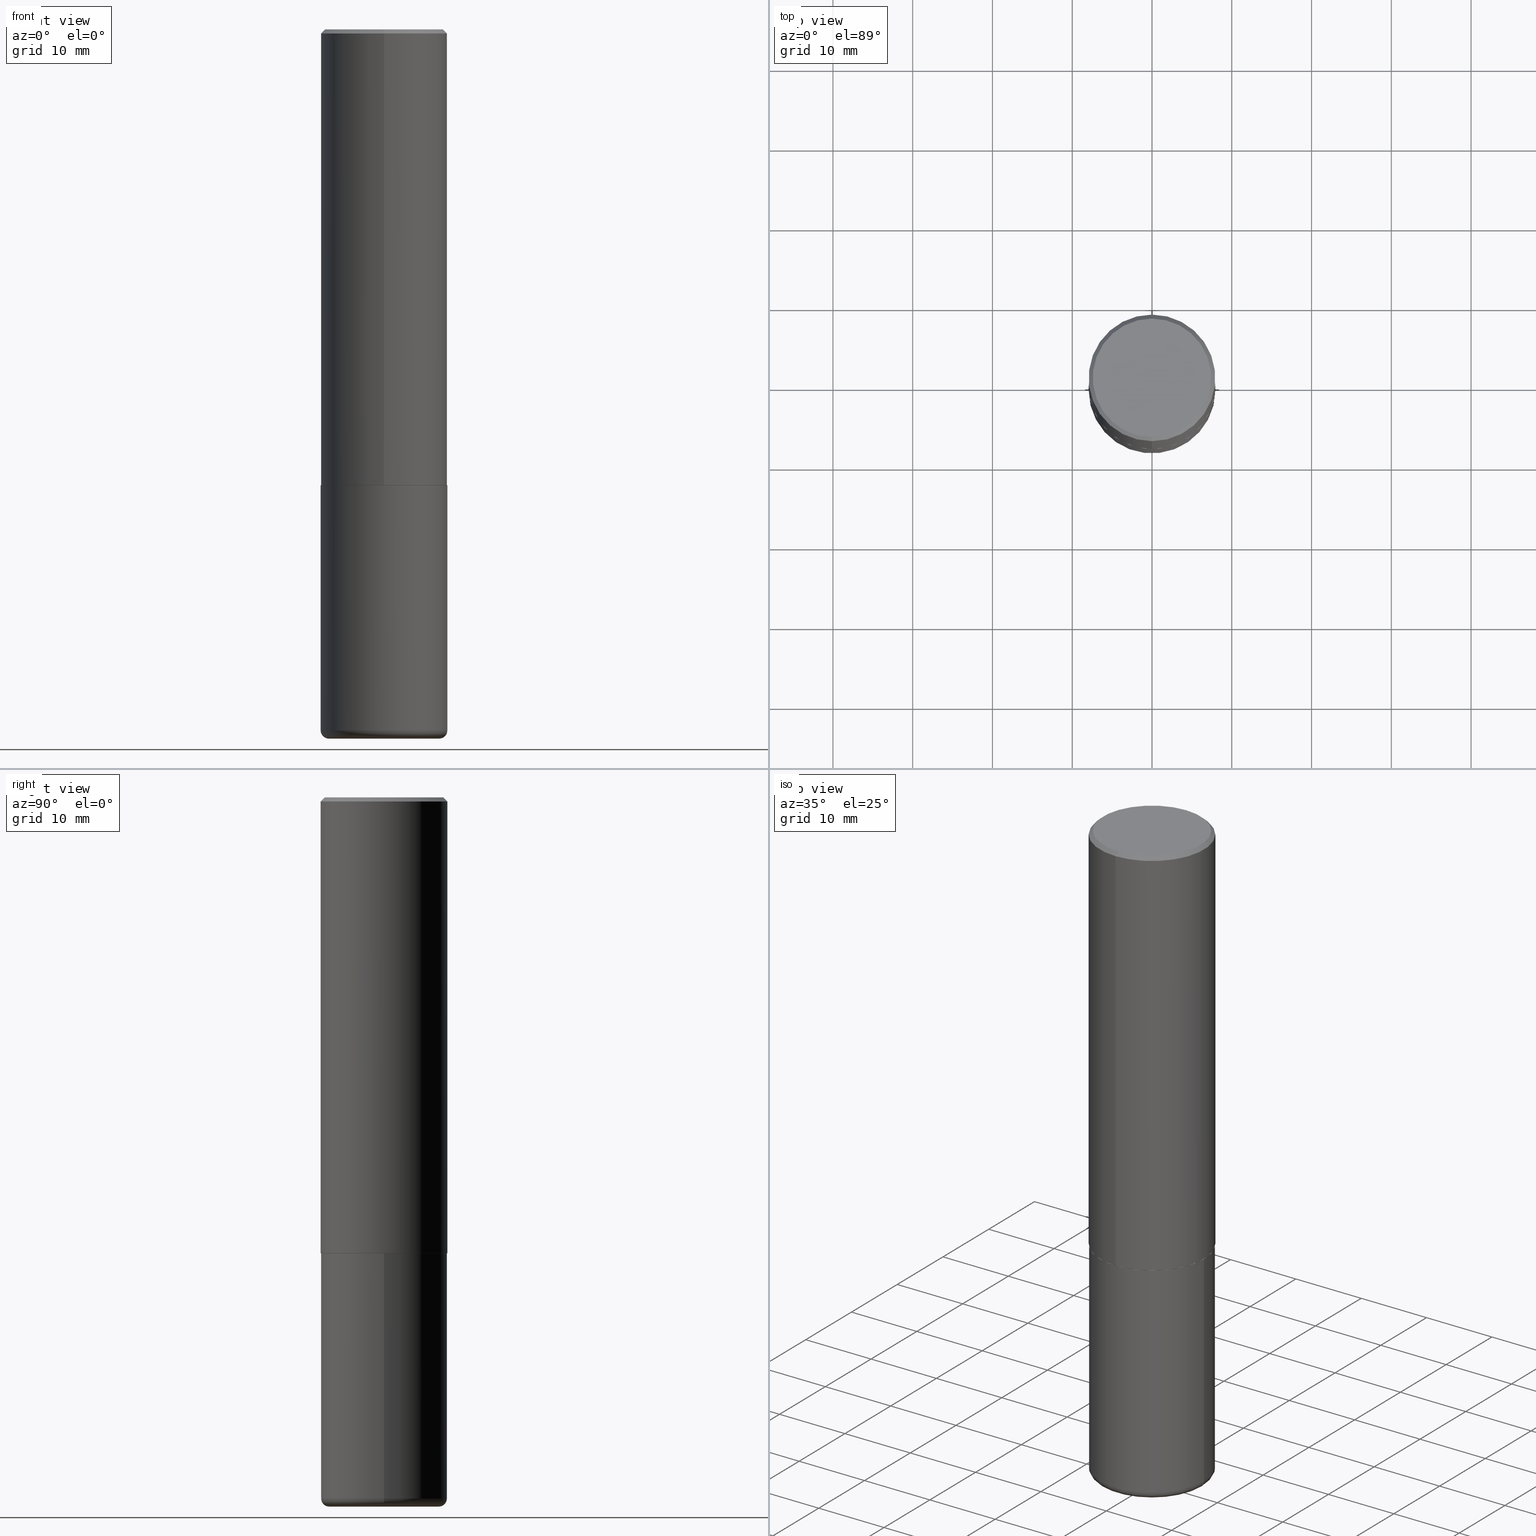
[diagram: canonical four-view strip — front | top / right | iso, engineering-drawing reading convention]
A machine part, canonical four-view strip (front | top / right | iso — engineering-drawing reading convention). The complete STEP part file that produces these views, byte-faithful:
ISO-10303-21;
HEADER;
FILE_DESCRIPTION (( 'STEP AP203' ),
    '1' );
FILE_NAME ('36807.STEP',
    '2024-03-01T17:51:07',
    ( '' ),
    ( '' ),
    'SwSTEP 2.0',
    'SolidWorks 2023',
    '' );
FILE_SCHEMA (( 'CONFIG_CONTROL_DESIGN' ));
ENDSEC;

DATA;
#1 = EDGE_CURVE ( 'NONE', #256, #364, #97, .T. ) ;
#2 = ORIENTED_EDGE ( 'NONE', *, *, #353, .T. ) ;
#3 = AXIS2_PLACEMENT_3D ( 'NONE', #241, #73, #38 ) ;
#4 = VERTEX_POINT ( 'NONE', #272 ) ;
#5 = ORIENTED_EDGE ( 'NONE', *, *, #169, .F. ) ;
#6 = CARTESIAN_POINT ( 'NONE',  ( 5.502914192481171202E-29, -7.854960347608873534E-15, -2.249999999999999556 ) ) ;
#7 = ORIENTED_EDGE ( 'NONE', *, *, #182, .F. ) ;
#8 = CARTESIAN_POINT ( 'NONE',  ( -3.442316563715977020E-45, 4.913625611108191722E-31, 1.407474657508472091E-16 ) ) ;
#9 = EDGE_LOOP ( 'NONE', ( #102, #67, #2, #115 ) ) ;
#10 = TOROIDAL_SURFACE ( 'NONE', #260, 0.2725000000000000200, 0.03999999999999974409 ) ;
#11 = COORDINATED_UNIVERSAL_TIME_OFFSET ( 5, 0, .BEHIND. ) ;
#12 = ADVANCED_FACE ( 'NONE', ( #310 ), #300, .T. ) ;
#13 = CARTESIAN_POINT ( 'NONE',  ( -2.175192874099216718E-15, -0.3115000000000078817, -2.249999999999998224 ) ) ;
#14 =( CONVERSION_BASED_UNIT ( 'INCH', #137 ) LENGTH_UNIT ( ) NAMED_UNIT ( #141 ) );
#15 = AXIS2_PLACEMENT_3D ( 'NONE', #280, #180, #178 ) ;
#16 = EDGE_LOOP ( 'NONE', ( #113, #198 ) ) ;
#17 = CARTESIAN_POINT ( 'NONE',  ( 5.502304813916556222E-29, -7.855833012397076871E-15, -2.249999999999999556 ) ) ;
#18 = CC_DESIGN_PERSON_AND_ORGANIZATION_ASSIGNMENT ( #362, #44, ( #199 ) ) ;
#19 = CARTESIAN_POINT ( 'NONE',  ( 4.891479282205503730E-31, -6.982186975652358107E-17, -0.02000000000000007327 ) ) ;
#20 = DIRECTION ( 'NONE',  ( -2.445739641102743317E-29, 3.491093487826166629E-15, 1.000000000000000000 ) ) ;
#21 = CALENDAR_DATE ( 2024, 1, 3 ) ;
#22 = DIRECTION ( 'NONE',  ( -2.445739641102743317E-29, 3.491093487826166629E-15, 1.000000000000000000 ) ) ;
#23 = CIRCLE ( 'NONE', #56, 0.2725000000000000200 ) ;
#24 = APPROVAL_ROLE ( '' ) ;
#25 = CARTESIAN_POINT ( 'NONE',  ( 0.3124999999999998890, -1.426270126917423794E-14, -3.459999999999999520 ) ) ;
#26 = EDGE_CURVE ( 'NONE', #329, #297, #23, .T. ) ;
#27 = DIRECTION ( 'NONE',  ( -2.445468806185136597E-29, 3.491481338843145583E-15, 1.000000000000000000 ) ) ;
#28 = DIRECTION ( 'NONE',  ( -2.445739641102743317E-29, 3.491093487826166629E-15, 1.000000000000000000 ) ) ;
#29 = VECTOR ( 'NONE', #252, 39.37007874015748143 ) ;
#30 = AXIS2_PLACEMENT_3D ( 'NONE', #235, #101, #134 ) ;
#31 = DIRECTION ( 'NONE',  ( -2.445739641102743317E-29, 3.491093487826166629E-15, 1.000000000000000000 ) ) ;
#32 = CARTESIAN_POINT ( 'NONE',  ( 8.461322069400571907E-29, -1.208052543239728275E-14, -3.459999999999999520 ) ) ;
#33 =( GEOMETRIC_REPRESENTATION_CONTEXT ( 3 ) GLOBAL_UNCERTAINTY_ASSIGNED_CONTEXT ( ( #366 ) ) GLOBAL_UNIT_ASSIGNED_CONTEXT ( ( #14, #398, #240 ) ) REPRESENTATION_CONTEXT ( 'NONE', 'WORKASPACE' ) );
#34 = LINE ( 'NONE', #61, #375 ) ;
#35 = AXIS2_PLACEMENT_3D ( 'NONE', #177, #348, #54 ) ;
#36 = ADVANCED_FACE ( 'NONE', ( #407 ), #124, .T. ) ;
#37 = ORIENTED_EDGE ( 'NONE', *, *, #214, .F. ) ;
#38 = DIRECTION ( 'NONE',  ( -6.982962677686265133E-15, -1.000000000000000000, 3.491093487826165840E-15 ) ) ;
#39 = DATE_AND_TIME ( #68, #255 ) ;
#40 = CC_DESIGN_APPROVAL ( #89, ( #369 ) ) ;
#41 = EDGE_LOOP ( 'NONE', ( #399, #100, #206, #374 ) ) ;
#42 = AXIS2_PLACEMENT_3D ( 'NONE', #32, #27, #230 ) ;
#43 = DATE_AND_TIME ( #21, #390 ) ;
#44 = PERSON_AND_ORGANIZATION_ROLE ( 'design_owner' ) ;
#45 = PRODUCT_DEFINITION_FORMATION_WITH_SPECIFIED_SOURCE ( 'ANY', '', #199, .NOT_KNOWN. ) ;
#46 = EDGE_LOOP ( 'NONE', ( #334, #135, #370, #404 ) ) ;
#47 = DIRECTION ( 'NONE',  ( 1.000000000000000000, 0.000000000000000000, 0.000000000000000000 ) ) ;
#48 = CARTESIAN_POINT ( 'NONE',  ( 5.502914192481171202E-29, -7.854960347608873534E-15, -2.249999999999999556 ) ) ;
#49 = CIRCLE ( 'NONE', #3, 0.2924999999999999267 ) ;
#50 = EDGE_CURVE ( 'NONE', #395, #333, #86, .T. ) ;
#51 = FACE_OUTER_BOUND ( 'NONE', #270, .T. ) ;
#52 = CARTESIAN_POINT ( 'NONE',  ( 2.216893335571567797E-15, 0.3114999999999921720, -2.250000000000000444 ) ) ;
#53 = EDGE_CURVE ( 'NONE', #131, #243, #218, .T. ) ;
#54 = DIRECTION ( 'NONE',  ( 1.000000000000000000, -6.982962677686266711E-15, 4.876176775795936353E-29 ) ) ;
#55 = DIRECTION ( 'NONE',  ( 2.438088387897960049E-29, -3.491481338843145188E-15, -1.000000000000000000 ) ) ;
#56 = AXIS2_PLACEMENT_3D ( 'NONE', #351, #76, #276 ) ;
#57 = VERTEX_POINT ( 'NONE', #25 ) ;
#58 = DIRECTION ( 'NONE',  ( -1.000000000000000000, 7.105427357601027102E-15, 0.000000000000000000 ) ) ;
#59 = DIRECTION ( 'NONE',  ( -1.000000000000000000, 6.982962677686265922E-15, -4.876176775795935793E-29 ) ) ;
#60 = APPROVAL_ROLE ( '' ) ;
#61 = CARTESIAN_POINT ( 'NONE',  ( -2.175192874099216718E-15, -0.3115000000000078817, -2.249999999999998224 ) ) ;
#62 = EDGE_CURVE ( 'NONE', #57, #256, #212, .T. ) ;
#63 = EDGE_CURVE ( 'NONE', #129, #395, #346, .T. ) ;
#64 = DIRECTION ( 'NONE',  ( -2.445468806185136597E-29, 3.491481338843145583E-15, 1.000000000000000000 ) ) ;
#65 = APPROVAL_DATE_TIME ( #43, #89 ) ;
#66 = AXIS2_PLACEMENT_3D ( 'NONE', #94, #325, #160 ) ;
#67 = ORIENTED_EDGE ( 'NONE', *, *, #53, .T. ) ;
#68 = CALENDAR_DATE ( 2024, 1, 3 ) ;
#69 = EDGE_LOOP ( 'NONE', ( #142, #305, #268, #221 ) ) ;
#70 = ORIENTED_EDGE ( 'NONE', *, *, #353, .F. ) ;
#71 = AXIS2_PLACEMENT_3D ( 'NONE', #48, #22, #372 ) ;
#72 = ORIENTED_EDGE ( 'NONE', *, *, #291, .F. ) ;
#73 = DIRECTION ( 'NONE',  ( -2.445739641102743317E-29, 3.491093487826166629E-15, 1.000000000000000000 ) ) ;
#74 = VERTEX_POINT ( 'NONE', #343 ) ;
#75 = ADVANCED_FACE ( 'NONE', ( #51 ), #279, .T. ) ;
#76 = DIRECTION ( 'NONE',  ( -2.445468806185136597E-29, 3.491481338843145583E-15, 1.000000000000000000 ) ) ;
#77 = CARTESIAN_POINT ( 'NONE',  ( 0.2725000000000000200, -1.412304201562051450E-14, -3.499999999999999112 ) ) ;
#78 = DIRECTION ( 'NONE',  ( 0.000000000000000000, 0.000000000000000000, 1.000000000000000000 ) ) ;
#79 = MANIFOLD_SOLID_BREP ( 'Body-Move/Copy2[2]', #228 ) ;
#80 = CARTESIAN_POINT ( 'NONE',  ( 5.500468452840068594E-29, -7.851469254121047133E-15, -2.248999999999999666 ) ) ;
#81 = CARTESIAN_POINT ( 'NONE',  ( 5.500468452840068594E-29, -7.851469254121047133E-15, -2.248999999999999666 ) ) ;
#82 = ORIENTED_EDGE ( 'NONE', *, *, #26, .F. ) ;
#83 = APPROVAL_PERSON_ORGANIZATION ( #181, #164, #60 ) ;
#84 = DIRECTION ( 'NONE',  ( -4.851104656540965853E-15, -0.7071067811865502373, -0.7071067811865447972 ) ) ;
#85 = CARTESIAN_POINT ( 'NONE',  ( 8.559140821647976968E-29, -1.222018468595100619E-14, -3.499999999999999112 ) ) ;
#86 = CIRCLE ( 'NONE', #327, 0.3125000000000002776 ) ;
#87 = MANIFOLD_SOLID_BREP ( 'Body-Move/Copy2[1]', #222 ) ;
#88 = CARTESIAN_POINT ( 'NONE',  ( 8.461322069400571907E-29, -1.208052543239728275E-14, -3.459999999999999520 ) ) ;
#89 = APPROVAL ( #413, 'UNSPECIFIED' ) ;
#90 = AXIS2_PLACEMENT_3D ( 'NONE', #352, #194, #123 ) ;
#91 = CALENDAR_DATE ( 2024, 1, 3 ) ;
#92 = DIRECTION ( 'NONE',  ( -2.445468806185136597E-29, 3.491481338843145583E-15, 1.000000000000000000 ) ) ;
#93 = EDGE_CURVE ( 'NONE', #333, #395, #417, .T. ) ;
#94 = CARTESIAN_POINT ( 'NONE',  ( 2.042516583223232145E-15, 0.2924999999999999267, -9.507711123137296887E-16 ) ) ;
#95 = AXIS2_PLACEMENT_3D ( 'NONE', #318, #154, #274 ) ;
#96 = ORIENTED_EDGE ( 'NONE', *, *, #53, .F. ) ;
#97 = CIRCLE ( 'NONE', #191, 0.3125000000000000000 ) ;
#98 = ORIENTED_EDGE ( 'NONE', *, *, #169, .T. ) ;
#99 = CARTESIAN_POINT ( 'NONE',  ( 0.3125000000000000000, -1.003800884917403522E-14, -2.249999999999999556 ) ) ;
#100 = ORIENTED_EDGE ( 'NONE', *, *, #262, .T. ) ;
#101 = DIRECTION ( 'NONE',  ( -2.445739641102743037E-29, 3.491093487826166629E-15, 1.000000000000000000 ) ) ;
#102 = ORIENTED_EDGE ( 'NONE', *, *, #253, .F. ) ;
#103 = DIRECTION ( 'NONE',  ( -2.445468806185136877E-29, 3.491481338843145188E-15, 1.000000000000000000 ) ) ;
#104 = FACE_OUTER_BOUND ( 'NONE', #41, .T. ) ;
#105 = AXIS2_PLACEMENT_3D ( 'NONE', #387, #157, #59 ) ;
#106 = ORIENTED_EDGE ( 'NONE', *, *, #253, .T. ) ;
#107 = EDGE_CURVE ( 'NONE', #166, #243, #408, .T. ) ;
#108 = AXIS2_PLACEMENT_3D ( 'NONE', #17, #55, #401 ) ;
#109 = DIRECTION ( 'NONE',  ( -2.445739641102743597E-29, 3.491093487826166629E-15, 1.000000000000000000 ) ) ;
#110 = DATE_TIME_ROLE ( 'creation_date' ) ;
#111 = APPROVAL_PERSON_ORGANIZATION ( #376, #89, #356 ) ;
#112 = CARTESIAN_POINT ( 'NONE',  ( 5.502304813916556222E-29, -7.855833012397076871E-15, -2.249999999999999556 ) ) ;
#113 = ORIENTED_EDGE ( 'NONE', *, *, #403, .F. ) ;
#114 = CIRCLE ( 'NONE', #15, 0.3114999999999999991 ) ;
#115 = ORIENTED_EDGE ( 'NONE', *, *, #361, .F. ) ;
#116 = AXIS2_PLACEMENT_3D ( 'NONE', #85, #248, #184 ) ;
#117 = DIRECTION ( 'NONE',  ( -6.982962677686265133E-15, -1.000000000000000000, 3.496765431890254947E-15 ) ) ;
#118 = DIRECTION ( 'NONE',  ( 2.445739641102743317E-29, -3.491093487826166629E-15, -1.000000000000000000 ) ) ;
#119 = CC_DESIGN_PERSON_AND_ORGANIZATION_ASSIGNMENT ( #185, #311, ( #45 ) ) ;
#120 = FACE_OUTER_BOUND ( 'NONE', #359, .T. ) ;
#121 = PLANE ( 'NONE',  #66 ) ;
#122 = PERSON_AND_ORGANIZATION ( #258, #363 ) ;
#123 = DIRECTION ( 'NONE',  ( 1.000000000000000000, -6.982962677686264344E-15, 0.000000000000000000 ) ) ;
#124 = CONICAL_SURFACE ( 'NONE', #293, 0.3125000000000001665, 0.7853981633974487231 ) ;
#125 = PERSON_AND_ORGANIZATION ( #258, #363 ) ;
#126 = ORIENTED_EDGE ( 'NONE', *, *, #63, .T. ) ;
#127 = CIRCLE ( 'NONE', #174, 0.03999999999999970940 ) ;
#128 = PRODUCT_RELATED_PRODUCT_CATEGORY ( 'detail', '', ( #199 ) ) ;
#129 = VERTEX_POINT ( 'NONE', #52 ) ;
#130 = APPLICATION_CONTEXT ( 'configuration controlled 3d designs of mechanical parts and assemblies' ) ;
#131 = VERTEX_POINT ( 'NONE', #179 ) ;
#132 = ADVANCED_FACE ( 'NONE', ( #312 ), #322, .T. ) ;
#133 = APPROVAL_PERSON_ORGANIZATION ( #314, #220, #24 ) ;
#134 = DIRECTION ( 'NONE',  ( -6.982962677686265922E-15, -1.000000000000000000, 3.491093487826166629E-15 ) ) ;
#135 = ORIENTED_EDGE ( 'NONE', *, *, #50, .T. ) ;
#136 = ADVANCED_FACE ( 'NONE', ( #382 ), #202, .T. ) ;
#137 = LENGTH_MEASURE_WITH_UNIT ( LENGTH_MEASURE( 0.02539999999999999897 ), #307 );
#138 = APPROVAL_DATE_TIME ( #332, #220 ) ;
#139 = AXIS2_PLACEMENT_3D ( 'NONE', #81, #215, #148 ) ;
#140 = DIRECTION ( 'NONE',  ( -2.445739641102743317E-29, 3.491093487826166629E-15, 1.000000000000000000 ) ) ;
#141 = DIMENSIONAL_EXPONENTS ( 1.000000000000000000, 0.000000000000000000, 0.000000000000000000, 0.000000000000000000, 0.000000000000000000, 0.000000000000000000, 0.000000000000000000 ) ;
#142 = ORIENTED_EDGE ( 'NONE', *, *, #161, .T. ) ;
#143 = LINE ( 'NONE', #216, #223 ) ;
#144 = MECHANICAL_CONTEXT ( 'NONE', #267, 'mechanical' ) ;
#145 = DIRECTION ( 'NONE',  ( -2.445739641102743317E-29, 3.491093487826166629E-15, 1.000000000000000000 ) ) ;
#146 = CARTESIAN_POINT ( 'NONE',  ( 0.3125000000000000000, -2.182175836776958347E-15, 1.523805242436230075E-29 ) ) ;
#147 = VECTOR ( 'NONE', #103, 39.37007874015748143 ) ;
#148 = DIRECTION ( 'NONE',  ( -6.982962677686265922E-15, -1.000000000000000000, 3.496765431890253764E-15 ) ) ;
#149 = FACE_OUTER_BOUND ( 'NONE', #391, .T. ) ;
#150 = DATE_AND_TIME ( #192, #385 ) ;
#151 = AXIS2_PLACEMENT_3D ( 'NONE', #6, #301, #171 ) ;
#152 = ADVANCED_FACE ( 'NONE', ( #384 ), #389, .T. ) ;
#153 = DIRECTION ( 'NONE',  ( -6.982962677686265922E-15, -1.000000000000000000, 3.491093487826167023E-15 ) ) ;
#154 = DIRECTION ( 'NONE',  ( -2.445468806185136597E-29, 3.491481338843145583E-15, 1.000000000000000000 ) ) ;
#155 = AXIS2_PLACEMENT_3D ( 'NONE', #229, #118, #292 ) ;
#156 = DIRECTION ( 'NONE',  ( 1.000000000000000000, -6.982962677686269077E-15, 4.883557194083113462E-29 ) ) ;
#157 = DIRECTION ( 'NONE',  ( 2.438088387897960049E-29, -3.491481338843145188E-15, -1.000000000000000000 ) ) ;
#158 = PERSON_AND_ORGANIZATION ( #258, #363 ) ;
#159 = CIRCLE ( 'NONE', #405, 0.2924999999999999267 ) ;
#160 = DIRECTION ( 'NONE',  ( 6.982962677686265922E-15, 1.000000000000000000, -3.491093487826166629E-15 ) ) ;
#161 = EDGE_CURVE ( 'NONE', #57, #4, #278, .T. ) ;
#162 = EDGE_LOOP ( 'NONE', ( #96, #170, #249, #317 ) ) ;
#163 = CARTESIAN_POINT ( 'NONE',  ( -0.3125000000000000000, 2.220446049250313081E-15, -1.537167215704658232E-29 ) ) ;
#164 = APPROVAL ( #254, 'UNSPECIFIED' ) ;
#165 = ORIENTED_EDGE ( 'NONE', *, *, #1, .T. ) ;
#166 = VERTEX_POINT ( 'NONE', #263 ) ;
#167 = COORDINATED_UNIVERSAL_TIME_OFFSET ( 5, 0, .BEHIND. ) ;
#168 = APPLICATION_PROTOCOL_DEFINITION ( 'international standard', 'config_control_design', 1994, #130 ) ;
#169 = EDGE_CURVE ( 'NONE', #364, #256, #394, .T. ) ;
#170 = ORIENTED_EDGE ( 'NONE', *, *, #411, .F. ) ;
#171 = DIRECTION ( 'NONE',  ( -6.982962677686265922E-15, -1.000000000000000000, 3.507991003100177457E-15 ) ) ;
#172 = ORIENTED_EDGE ( 'NONE', *, *, #298, .T. ) ;
#173 = CARTESIAN_POINT ( 'NONE',  ( 5.502914192481171202E-29, -7.854960347608873534E-15, -2.249999999999999556 ) ) ;
#174 = AXIS2_PLACEMENT_3D ( 'NONE', #357, #323, #193 ) ;
#175 = ORIENTED_EDGE ( 'NONE', *, *, #182, .T. ) ;
#176 = APPROVAL_STATUS ( 'not_yet_approved' ) ;
#177 = CARTESIAN_POINT ( 'NONE',  ( 0.000000000000000000, 0.000000000000000000, 0.000000000000000000 ) ) ;
#178 = DIRECTION ( 'NONE',  ( -6.982962677686265922E-15, -1.000000000000000000, 3.507991003100177457E-15 ) ) ;
#179 = CARTESIAN_POINT ( 'NONE',  ( -2.075300644325888282E-15, -0.2924999999999999267, 1.161892310940000749E-15 ) ) ;
#180 = DIRECTION ( 'NONE',  ( -2.445739641102743317E-29, 3.491093487826166629E-15, 1.000000000000000000 ) ) ;
#181 = PERSON_AND_ORGANIZATION ( #258, #363 ) ;
#182 = EDGE_CURVE ( 'NONE', #297, #4, #380, .T. ) ;
#183 = CARTESIAN_POINT ( 'NONE',  ( -2.143905624303604008E-15, -0.3125000000000002220, -0.01999999999999898040 ) ) ;
#184 = DIRECTION ( 'NONE',  ( 1.000000000000000000, -6.982962677686266711E-15, 0.000000000000000000 ) ) ;
#185 = PERSON_AND_ORGANIZATION ( #258, #363 ) ;
#186 = ORIENTED_EDGE ( 'NONE', *, *, #93, .F. ) ;
#187 = EDGE_CURVE ( 'NONE', #329, #57, #127, .T. ) ;
#188 = CARTESIAN_POINT ( 'NONE',  ( -0.3125000000000000000, -7.747733173146866727E-15, -2.249999999999999556 ) ) ;
#189 = CC_DESIGN_SECURITY_CLASSIFICATION ( #290, ( #45 ) ) ;
#190 = DIRECTION ( 'NONE',  ( -2.445468806185136597E-29, 3.491481338843145583E-15, 1.000000000000000000 ) ) ;
#191 = AXIS2_PLACEMENT_3D ( 'NONE', #112, #409, #282 ) ;
#192 = CALENDAR_DATE ( 2024, 1, 3 ) ;
#193 = DIRECTION ( 'NONE',  ( 1.000000000000000000, -6.982962677686287221E-15, 0.000000000000000000 ) ) ;
#194 = DIRECTION ( 'NONE',  ( -2.445468806185136597E-29, 3.491481338843145583E-15, 1.000000000000000000 ) ) ;
#195 = AXIS2_PLACEMENT_3D ( 'NONE', #355, #64, #225 ) ;
#196 = ADVANCED_FACE ( 'NONE', ( #261 ), #320, .T. ) ;
#197 = ORIENTED_EDGE ( 'NONE', *, *, #62, .T. ) ;
#198 = ORIENTED_EDGE ( 'NONE', *, *, #262, .F. ) ;
#199 = PRODUCT ( '36807', '36807', '', ( #144 ) ) ;
#200 = ORIENTED_EDGE ( 'NONE', *, *, #246, .F. ) ;
#201 = CIRCLE ( 'NONE', #269, 0.3114999999999999991 ) ;
#202 = CONICAL_SURFACE ( 'NONE', #155, 0.3125000000000001665, 0.7853981633974487231 ) ;
#203 = CARTESIAN_POINT ( 'NONE',  ( 0.000000000000000000, 0.000000000000000000, 0.000000000000000000 ) ) ;
#204 = ADVANCED_FACE ( 'NONE', ( #285 ), #415, .T. ) ;
#205 = SHAPE_DEFINITION_REPRESENTATION ( #337, #383 ) ;
#206 = ORIENTED_EDGE ( 'NONE', *, *, #214, .T. ) ;
#207 = ORIENTED_EDGE ( 'NONE', *, *, #331, .F. ) ;
#208 = CC_DESIGN_APPROVAL ( #220, ( #290 ) ) ;
#209 = DIRECTION ( 'NONE',  ( -6.982962677686265922E-15, -1.000000000000000000, 3.496765431890253764E-15 ) ) ;
#210 = CARTESIAN_POINT ( 'NONE',  ( 4.891479282205503730E-31, -6.982186975652358107E-17, -0.02000000000000007327 ) ) ;
#211 = AXIS2_PLACEMENT_3D ( 'NONE', #418, #416, #58 ) ;
#212 = LINE ( 'NONE', #146, #341 ) ;
#213 = CARTESIAN_POINT ( 'NONE',  ( -2.182175836776905099E-15, -0.3125000000000081601, -2.248999999999998778 ) ) ;
#214 = EDGE_CURVE ( 'NONE', #236, #333, #34, .T. ) ;
#215 = DIRECTION ( 'NONE',  ( -2.445739641102743317E-29, 3.491093487826166629E-15, 1.000000000000000000 ) ) ;
#216 = CARTESIAN_POINT ( 'NONE',  ( -2.182175836776959530E-15, -0.3125000000000002220, 1.090966714945677910E-15 ) ) ;
#217 = ADVANCED_FACE ( 'NONE', ( #120 ), #10, .T. ) ;
#218 = LINE ( 'NONE', #183, #368 ) ;
#219 = SECURITY_CLASSIFICATION_LEVEL ( 'unclassified' ) ;
#220 = APPROVAL ( #176, 'UNSPECIFIED' ) ;
#221 = ORIENTED_EDGE ( 'NONE', *, *, #62, .F. ) ;
#222 = CLOSED_SHELL ( 'NONE', ( #204, #132, #273, #75, #217, #152 ) ) ;
#223 = VECTOR ( 'NONE', #109, 39.37007874015748143 ) ;
#224 = CIRCLE ( 'NONE', #116, 0.2725000000000000200 ) ;
#225 = DIRECTION ( 'NONE',  ( 1.000000000000000000, -6.982962677686266711E-15, 4.876176775795936353E-29 ) ) ;
#226 = AXIS2_PLACEMENT_3D ( 'NONE', #203, #78, #47 ) ;
#227 = DIRECTION ( 'NONE',  ( 1.000000000000000000, -6.982962677686269077E-15, 0.000000000000000000 ) ) ;
#228 = CLOSED_SHELL ( 'NONE', ( #12, #358, #36, #136, #196, #406, #392, #231 ) ) ;
#229 = CARTESIAN_POINT ( 'NONE',  ( 4.891479282205503730E-31, -6.982186975652358107E-17, -0.02000000000000007327 ) ) ;
#230 = DIRECTION ( 'NONE',  ( 1.000000000000000000, -6.982962677686269077E-15, 4.883557194083113462E-29 ) ) ;
#231 = ADVANCED_FACE ( 'NONE', ( #289 ), #121, .F. ) ;
#232 = AXIS2_PLACEMENT_3D ( 'NONE', #259, #31, #153 ) ;
#233 = PERSON_AND_ORGANIZATION_ROLE ( 'creator' ) ;
#234 = ORIENTED_EDGE ( 'NONE', *, *, #365, .T. ) ;
#235 = CARTESIAN_POINT ( 'NONE',  ( 5.502914192481172323E-29, -7.854960347608875112E-15, -2.249999999999999556 ) ) ;
#236 = VERTEX_POINT ( 'NONE', #13 ) ;
#237 = AXIS2_PLACEMENT_3D ( 'NONE', #210, #28, #316 ) ;
#238 = ORIENTED_EDGE ( 'NONE', *, *, #411, .T. ) ;
#239 = AXIS2_PLACEMENT_3D ( 'NONE', #19, #145, #117 ) ;
#240 =( NAMED_UNIT ( * ) SI_UNIT ( $, .STERADIAN. ) SOLID_ANGLE_UNIT ( ) );
#241 = CARTESIAN_POINT ( 'NONE',  ( -3.442316563715977020E-45, 4.913625611108191722E-31, 1.407474657508472091E-16 ) ) ;
#242 = DIRECTION ( 'NONE',  ( -2.445739641102743317E-29, 3.491093487826166629E-15, 1.000000000000000000 ) ) ;
#243 = VERTEX_POINT ( 'NONE', #306 ) ;
#244 = LINE ( 'NONE', #349, #281 ) ;
#245 = DIRECTION ( 'NONE',  ( -6.982962677686265133E-15, -1.000000000000000000, 3.491093487826165840E-15 ) ) ;
#246 = EDGE_CURVE ( 'NONE', #4, #364, #360, .T. ) ;
#247 = CARTESIAN_POINT ( 'NONE',  ( 4.891479282205503730E-31, -6.982186975652358107E-17, -0.02000000000000007327 ) ) ;
#248 = DIRECTION ( 'NONE',  ( -2.445468806185136597E-29, 3.491481338843145583E-15, 1.000000000000000000 ) ) ;
#249 = ORIENTED_EDGE ( 'NONE', *, *, #361, .T. ) ;
#250 = CARTESIAN_POINT ( 'NONE',  ( 2.182175836776959530E-15, 0.3125000000000000555, -0.02000000000000116615 ) ) ;
#251 = DIRECTION ( 'NONE',  ( 2.445739641102743317E-29, -3.491093487826166629E-15, -1.000000000000000000 ) ) ;
#252 = DIRECTION ( 'NONE',  ( 4.937700262164549620E-15, 0.7071067811865453523, -0.7071067811865496822 ) ) ;
#253 = EDGE_CURVE ( 'NONE', #131, #74, #49, .T. ) ;
#254 = APPROVAL_STATUS ( 'not_yet_approved' ) ;
#255 = LOCAL_TIME ( 12, 51, 7.000000000000000000, #167 ) ;
#256 = VERTEX_POINT ( 'NONE', #99 ) ;
#257 = CARTESIAN_POINT ( 'NONE',  ( -0.2725000000000000200, -1.007201755707585313E-14, -3.499999999999999112 ) ) ;
#258 = PERSON ( 'UNSPECIFIED', 'UNSPECIFIED', 'UNSPECIFIED', ('UNSPECIFIED'), ('UNSPECIFIED'), ('UNSPECIFIED') ) ;
#259 = CARTESIAN_POINT ( 'NONE',  ( 0.000000000000000000, 0.000000000000000000, 0.000000000000000000 ) ) ;
#260 = AXIS2_PLACEMENT_3D ( 'NONE', #88, #190, #156 ) ;
#261 = FACE_OUTER_BOUND ( 'NONE', #46, .T. ) ;
#262 = EDGE_CURVE ( 'NONE', #129, #236, #114, .T. ) ;
#263 = CARTESIAN_POINT ( 'NONE',  ( 2.182175836776959530E-15, 0.3125000000000000555, -0.02000000000000116615 ) ) ;
#264 = ORIENTED_EDGE ( 'NONE', *, *, #161, .F. ) ;
#265 = EDGE_LOOP ( 'NONE', ( #238, #106 ) ) ;
#266 = VECTOR ( 'NONE', #377, 39.37007874015748143 ) ;
#267 = APPLICATION_CONTEXT ( 'configuration controlled 3d designs of mechanical parts and assemblies' ) ;
#268 = ORIENTED_EDGE ( 'NONE', *, *, #1, .F. ) ;
#269 = AXIS2_PLACEMENT_3D ( 'NONE', #173, #242, #303 ) ;
#270 = EDGE_LOOP ( 'NONE', ( #200, #234, #197, #5 ) ) ;
#271 = DESIGN_CONTEXT ( 'detailed design', #130, 'design' ) ;
#272 = CARTESIAN_POINT ( 'NONE',  ( -0.3124999999999998890, -9.860079383146968087E-15, -3.459999999999999520 ) ) ;
#273 = ADVANCED_FACE ( 'NONE', ( #149 ), #283, .F. ) ;
#274 = DIRECTION ( 'NONE',  ( 1.000000000000000000, -6.982962677686264344E-15, 0.000000000000000000 ) ) ;
#275 = ORIENTED_EDGE ( 'NONE', *, *, #187, .F. ) ;
#276 = DIRECTION ( 'NONE',  ( 1.000000000000000000, -6.982962677686266711E-15, 0.000000000000000000 ) ) ;
#277 = DIRECTION ( 'NONE',  ( -6.982962677686265922E-15, -1.000000000000000000, 3.491093487826167023E-15 ) ) ;
#278 = CIRCLE ( 'NONE', #90, 0.3124999999999999445 ) ;
#279 = CYLINDRICAL_SURFACE ( 'NONE', #35, 0.3125000000000000000 ) ;
#280 = CARTESIAN_POINT ( 'NONE',  ( 5.502914192481171202E-29, -7.854960347608873534E-15, -2.249999999999999556 ) ) ;
#281 = VECTOR ( 'NONE', #313, 39.37007874015748143 ) ;
#282 = DIRECTION ( 'NONE',  ( 1.000000000000000000, -6.982962677686269077E-15, 0.000000000000000000 ) ) ;
#283 = PLANE ( 'NONE',  #108 ) ;
#284 = COORDINATED_UNIVERSAL_TIME_OFFSET ( 5, 0, .BEHIND. ) ;
#285 = FACE_OUTER_BOUND ( 'NONE', #69, .T. ) ;
#286 = CC_DESIGN_DATE_AND_TIME_ASSIGNMENT ( #373, #345, ( #290 ) ) ;
#287 = DIRECTION ( 'NONE',  ( -4.937700262165728178E-15, -0.7071067811867141062, 0.7071067811863809283 ) ) ;
#288 = COORDINATED_UNIVERSAL_TIME_OFFSET ( 5, 0, .BEHIND. ) ;
#289 = FACE_OUTER_BOUND ( 'NONE', #265, .T. ) ;
#290 = SECURITY_CLASSIFICATION ( '', '', #219 ) ;
#291 = EDGE_CURVE ( 'NONE', #333, #243, #143, .T. ) ;
#292 = DIRECTION ( 'NONE',  ( 6.982962677686265133E-15, 1.000000000000000000, -3.496765431890254947E-15 ) ) ;
#293 = AXIS2_PLACEMENT_3D ( 'NONE', #247, #251, #379 ) ;
#294 = CC_DESIGN_DATE_AND_TIME_ASSIGNMENT ( #39, #110, ( #369 ) ) ;
#295 = CIRCLE ( 'NONE', #237, 0.3125000000000001665 ) ;
#296 = CONICAL_SURFACE ( 'NONE', #151, 0.3114999999999999991, 0.7853981633976873100 ) ;
#297 = VERTEX_POINT ( 'NONE', #257 ) ;
#298 = EDGE_CURVE ( 'NONE', #395, #166, #244, .T. ) ;
#299 = ORIENTED_EDGE ( 'NONE', *, *, #26, .T. ) ;
#300 = CONICAL_SURFACE ( 'NONE', #71, 0.3114999999999999991, 0.7853981633976873100 ) ;
#301 = DIRECTION ( 'NONE',  ( -2.445739641102743317E-29, 3.491093487826166629E-15, 1.000000000000000000 ) ) ;
#302 = EDGE_LOOP ( 'NONE', ( #82, #207 ) ) ;
#303 = DIRECTION ( 'NONE',  ( -6.982962677686265922E-15, -1.000000000000000000, 3.507991003100177457E-15 ) ) ;
#304 = ORIENTED_EDGE ( 'NONE', *, *, #331, .T. ) ;
#305 = ORIENTED_EDGE ( 'NONE', *, *, #246, .T. ) ;
#306 = CARTESIAN_POINT ( 'NONE',  ( -2.143905624303604008E-15, -0.3125000000000002220, -0.01999999999999898040 ) ) ;
#307 =( LENGTH_UNIT ( ) NAMED_UNIT ( * ) SI_UNIT ( $, .METRE. ) );
#308 = ORIENTED_EDGE ( 'NONE', *, *, #187, .T. ) ;
#309 = COORDINATED_UNIVERSAL_TIME_OFFSET ( 5, 0, .BEHIND. ) ;
#310 = FACE_OUTER_BOUND ( 'NONE', #330, .T. ) ;
#311 = PERSON_AND_ORGANIZATION_ROLE ( 'design_supplier' ) ;
#312 = FACE_OUTER_BOUND ( 'NONE', #367, .T. ) ;
#313 = DIRECTION ( 'NONE',  ( -2.445739641102743597E-29, 3.491093487826166629E-15, 1.000000000000000000 ) ) ;
#314 = PERSON_AND_ORGANIZATION ( #258, #363 ) ;
#315 = DIRECTION ( 'NONE',  ( -2.445468806185136877E-29, 3.491481338843145188E-15, 1.000000000000000000 ) ) ;
#316 = DIRECTION ( 'NONE',  ( -6.982962677686265133E-15, -1.000000000000000000, 3.496765431890254947E-15 ) ) ;
#317 = ORIENTED_EDGE ( 'NONE', *, *, #107, .T. ) ;
#318 = CARTESIAN_POINT ( 'NONE',  ( 8.461322069400571907E-29, -1.208052543239728275E-14, -3.459999999999999520 ) ) ;
#319 = LOCAL_TIME ( 12, 51, 7.000000000000000000, #309 ) ;
#320 = CYLINDRICAL_SURFACE ( 'NONE', #232, 0.3125000000000002220 ) ;
#321 = CC_DESIGN_PERSON_AND_ORGANIZATION_ASSIGNMENT ( #158, #328, ( #290 ) ) ;
#322 = TOROIDAL_SURFACE ( 'NONE', #42, 0.2725000000000000200, 0.03999999999999974409 ) ;
#323 = DIRECTION ( 'NONE',  ( -6.982962677686266711E-15, -1.000000000000000000, 3.491481338843145583E-15 ) ) ;
#324 = APPROVAL_DATE_TIME ( #150, #164 ) ;
#325 = DIRECTION ( 'NONE',  ( 2.445739641102743037E-29, -3.491093487826166629E-15, -1.000000000000000000 ) ) ;
#326 = CC_DESIGN_APPROVAL ( #164, ( #45 ) ) ;
#327 = AXIS2_PLACEMENT_3D ( 'NONE', #80, #140, #209 ) ;
#328 = PERSON_AND_ORGANIZATION_ROLE ( 'classification_officer' ) ;
#329 = VERTEX_POINT ( 'NONE', #77 ) ;
#330 = EDGE_LOOP ( 'NONE', ( #400, #126, #186, #37 ) ) ;
#331 = EDGE_CURVE ( 'NONE', #297, #329, #224, .T. ) ;
#332 = DATE_AND_TIME ( #393, #319 ) ;
#333 = VERTEX_POINT ( 'NONE', #213 ) ;
#334 = ORIENTED_EDGE ( 'NONE', *, *, #298, .F. ) ;
#335 = CARTESIAN_POINT ( 'NONE',  ( 2.220446049250342269E-15, 0.3124999999999924505, -2.249000000000000998 ) ) ;
#336 = CC_DESIGN_PERSON_AND_ORGANIZATION_ASSIGNMENT ( #122, #412, ( #45 ) ) ;
#337 = PRODUCT_DEFINITION_SHAPE ( 'NONE', 'NONE',  #369 ) ;
#338 = APPLICATION_PROTOCOL_DEFINITION ( 'international standard', 'config_control_design', 1994, #267 ) ;
#339 = CARTESIAN_POINT ( 'NONE',  ( 2.213340621892766504E-15, 0.3114999999999921720, -2.250000000000000444 ) ) ;
#340 = FACE_OUTER_BOUND ( 'NONE', #397, .T. ) ;
#341 = VECTOR ( 'NONE', #315, 39.37007874015748143 ) ;
#342 = PLANE ( 'NONE',  #30 ) ;
#343 = CARTESIAN_POINT ( 'NONE',  ( 2.112346210000095838E-15, 0.2924999999999999267, -8.803973794383061334E-16 ) ) ;
#344 = CYLINDRICAL_SURFACE ( 'NONE', #386, 0.3125000000000002220 ) ;
#345 = DATE_TIME_ROLE ( 'classification_date' ) ;
#346 = LINE ( 'NONE', #339, #266 ) ;
#347 = LINE ( 'NONE', #250, #29 ) ;
#348 = DIRECTION ( 'NONE',  ( -2.445468806185136597E-29, 3.491481338843145583E-15, 1.000000000000000000 ) ) ;
#349 = CARTESIAN_POINT ( 'NONE',  ( 2.220446049250314264E-15, 0.3125000000000002220, -1.090966714945677910E-15 ) ) ;
#350 = AXIS2_PLACEMENT_3D ( 'NONE', #388, #92, #227 ) ;
#351 = CARTESIAN_POINT ( 'NONE',  ( 8.559140821647976968E-29, -1.222018468595100619E-14, -3.499999999999999112 ) ) ;
#352 = CARTESIAN_POINT ( 'NONE',  ( 8.461322069400571907E-29, -1.208052543239728275E-14, -3.459999999999999520 ) ) ;
#353 = EDGE_CURVE ( 'NONE', #243, #166, #295, .T. ) ;
#354 = LOCAL_TIME ( 12, 51, 7.000000000000000000, #284 ) ;
#355 = CARTESIAN_POINT ( 'NONE',  ( 0.000000000000000000, 0.000000000000000000, 0.000000000000000000 ) ) ;
#356 = APPROVAL_ROLE ( '' ) ;
#357 = CARTESIAN_POINT ( 'NONE',  ( 0.2725000000000000200, -1.398338276206678948E-14, -3.459999999999999520 ) ) ;
#358 = ADVANCED_FACE ( 'NONE', ( #340 ), #344, .T. ) ;
#359 = EDGE_LOOP ( 'NONE', ( #7, #304, #308, #378 ) ) ;
#360 = LINE ( 'NONE', #163, #147 ) ;
#361 = EDGE_CURVE ( 'NONE', #74, #166, #347, .T. ) ;
#362 = PERSON_AND_ORGANIZATION ( #258, #363 ) ;
#363 = ORGANIZATION ( 'UNSPECIFIED', 'UNSPECIFIED', '' ) ;
#364 = VERTEX_POINT ( 'NONE', #188 ) ;
#365 = EDGE_CURVE ( 'NONE', #4, #57, #414, .T. ) ;
#366 = UNCERTAINTY_MEASURE_WITH_UNIT (LENGTH_MEASURE( 1.000000000000000082E-05 ), #14, 'distance_accuracy_value', 'NONE');
#367 = EDGE_LOOP ( 'NONE', ( #299, #175, #264, #275 ) ) ;
#368 = VECTOR ( 'NONE', #84, 39.37007874015748143 ) ;
#369 = PRODUCT_DEFINITION ( 'UNKNOWN', '', #45, #271 ) ;
#370 = ORIENTED_EDGE ( 'NONE', *, *, #291, .T. ) ;
#371 = DIRECTION ( 'NONE',  ( -2.445739641102743317E-29, 3.491093487826166629E-15, 1.000000000000000000 ) ) ;
#372 = DIRECTION ( 'NONE',  ( -6.982962677686265922E-15, -1.000000000000000000, 3.507991003100177457E-15 ) ) ;
#373 = DATE_AND_TIME ( #91, #354 ) ;
#374 = ORIENTED_EDGE ( 'NONE', *, *, #50, .F. ) ;
#375 = VECTOR ( 'NONE', #287, 39.37007874015748143 ) ;
#376 = PERSON_AND_ORGANIZATION ( #258, #363 ) ;
#377 = DIRECTION ( 'NONE',  ( 5.024295867789263036E-15, 0.7071067811867189912, 0.7071067811863760433 ) ) ;
#378 = ORIENTED_EDGE ( 'NONE', *, *, #365, .F. ) ;
#379 = DIRECTION ( 'NONE',  ( 6.982962677686265133E-15, 1.000000000000000000, -3.496765431890254947E-15 ) ) ;
#380 = CIRCLE ( 'NONE', #211, 0.03999999999999970940 ) ;
#381 = CC_DESIGN_PERSON_AND_ORGANIZATION_ASSIGNMENT ( #125, #233, ( #369 ) ) ;
#382 = FACE_OUTER_BOUND ( 'NONE', #162, .T. ) ;
#383 = ADVANCED_BREP_SHAPE_REPRESENTATION ( '36807', ( #87, #79, #226 ), #33 ) ;
#384 = FACE_OUTER_BOUND ( 'NONE', #302, .T. ) ;
#385 = LOCAL_TIME ( 12, 51, 7.000000000000000000, #288 ) ;
#386 = AXIS2_PLACEMENT_3D ( 'NONE', #410, #20, #277 ) ;
#387 = CARTESIAN_POINT ( 'NONE',  ( 1.345949854884385100E-28, -5.202593509565742482E-15, -3.499999999999999112 ) ) ;
#388 = CARTESIAN_POINT ( 'NONE',  ( 5.502304813916556222E-29, -7.855833012397076871E-15, -2.249999999999999556 ) ) ;
#389 = PLANE ( 'NONE',  #105 ) ;
#390 = LOCAL_TIME ( 12, 51, 7.000000000000000000, #11 ) ;
#391 = EDGE_LOOP ( 'NONE', ( #165, #98 ) ) ;
#392 = ADVANCED_FACE ( 'NONE', ( #402 ), #342, .F. ) ;
#393 = CALENDAR_DATE ( 2024, 1, 3 ) ;
#394 = CIRCLE ( 'NONE', #350, 0.3125000000000000000 ) ;
#395 = VERTEX_POINT ( 'NONE', #335 ) ;
#396 = ORIENTED_EDGE ( 'NONE', *, *, #93, .T. ) ;
#397 = EDGE_LOOP ( 'NONE', ( #396, #172, #70, #72 ) ) ;
#398 =( NAMED_UNIT ( * ) PLANE_ANGLE_UNIT ( ) SI_UNIT ( $, .RADIAN. ) );
#399 = ORIENTED_EDGE ( 'NONE', *, *, #63, .F. ) ;
#400 = ORIENTED_EDGE ( 'NONE', *, *, #403, .T. ) ;
#401 = DIRECTION ( 'NONE',  ( -1.000000000000000000, 6.982962677686265922E-15, -4.876176775795935793E-29 ) ) ;
#402 = FACE_OUTER_BOUND ( 'NONE', #16, .T. ) ;
#403 = EDGE_CURVE ( 'NONE', #236, #129, #201, .T. ) ;
#404 = ORIENTED_EDGE ( 'NONE', *, *, #107, .F. ) ;
#405 = AXIS2_PLACEMENT_3D ( 'NONE', #8, #371, #245 ) ;
#406 = ADVANCED_FACE ( 'NONE', ( #104 ), #296, .T. ) ;
#407 = FACE_OUTER_BOUND ( 'NONE', #9, .T. ) ;
#408 = CIRCLE ( 'NONE', #239, 0.3125000000000001665 ) ;
#409 = DIRECTION ( 'NONE',  ( -2.445468806185136597E-29, 3.491481338843145583E-15, 1.000000000000000000 ) ) ;
#410 = CARTESIAN_POINT ( 'NONE',  ( 0.000000000000000000, 0.000000000000000000, 0.000000000000000000 ) ) ;
#411 = EDGE_CURVE ( 'NONE', #74, #131, #159, .T. ) ;
#412 = PERSON_AND_ORGANIZATION_ROLE ( 'creator' ) ;
#413 = APPROVAL_STATUS ( 'not_yet_approved' ) ;
#414 = CIRCLE ( 'NONE', #95, 0.3124999999999999445 ) ;
#415 = CYLINDRICAL_SURFACE ( 'NONE', #195, 0.3125000000000000000 ) ;
#416 = DIRECTION ( 'NONE',  ( 7.105427357601001859E-15, 1.000000000000000000, -3.491481338843145583E-15 ) ) ;
#417 = CIRCLE ( 'NONE', #139, 0.3125000000000002776 ) ;
#418 = CARTESIAN_POINT ( 'NONE',  ( -0.2725000000000000200, -1.014429647745100841E-14, -3.459999999999999520 ) ) ;
ENDSEC;
END-ISO-10303-21;
